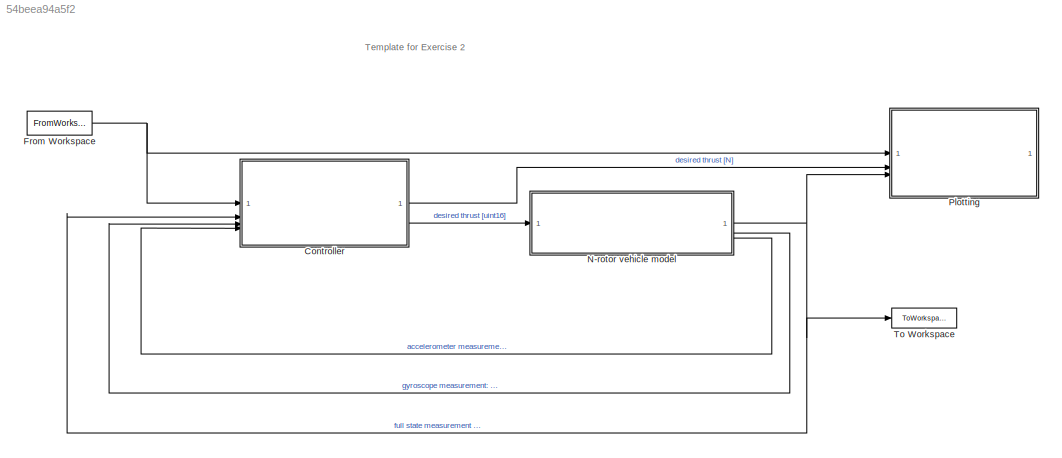
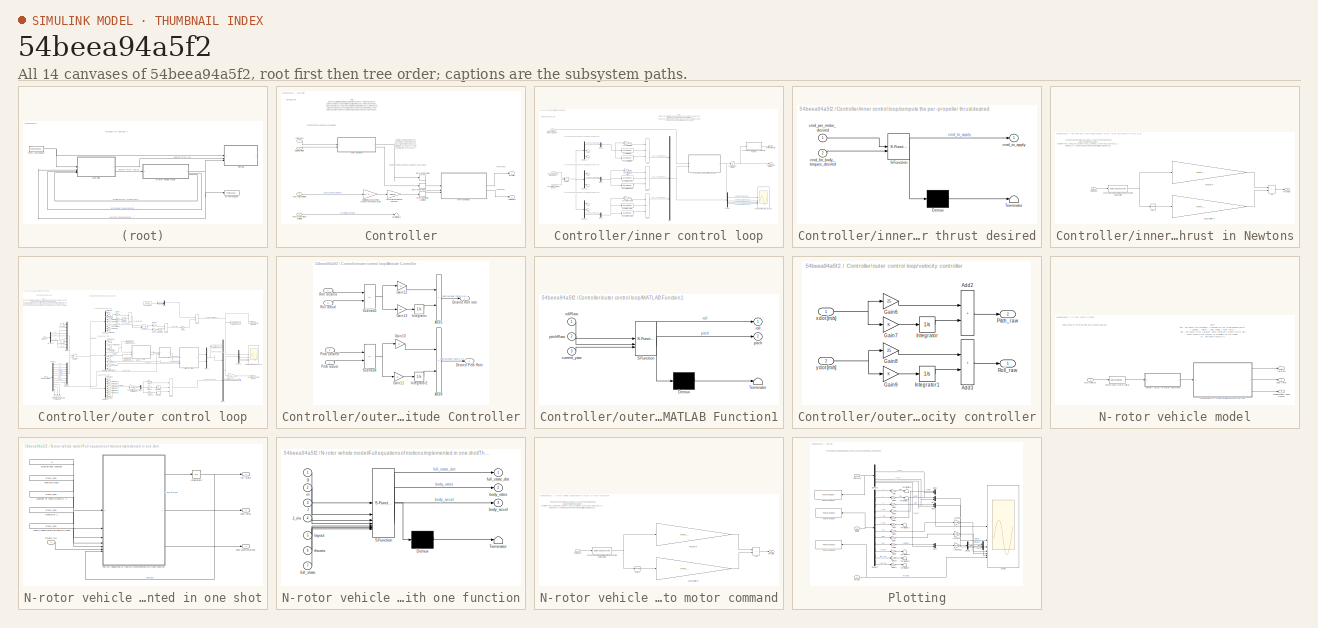
[diagram: thumbnail index - all 14 canvases of the model, root first then tree order]
MODEL slx_54beea94a5f2
KIND model
CONFIG AbsTol = auto
CONFIG EnableMultiTasking = on
CONFIG FixedStep = 1e-5
CONFIG InitFcn = nonlinear_model_setup\n% exercise02_simulation_parameters
CONFIG MaxStep = 1e-3
CONFIG MinStep = auto
CONFIG RelTol = 1e-4
CONFIG SampleTimeConstraint = Unconstrained
CONFIG SolverName = ode45
CONFIG StartTime = 0.0
CONFIG StopTime = 5
BLOCK [SubSystem] Controller
BLOCK [Gain] Controller/Convert from radians to degrees
  Gain = 180/pi
BLOCK [Gain] Controller/Rotate into axis convention used on-board the Crazyflie
  Gain = [1,-1, -1]
BLOCK [Terminator] Controller/Terminator1
BLOCK [ZeroOrderHold] Controller/Zero-Order Hold1
  SampleTime = sample_time_controller_inner
BLOCK [ZeroOrderHold] Controller/Zero-Order Hold2
  SampleTime = sample_time_controller_inner
BLOCK [Inport] Controller/body accelerations estimate
  Port = 4
BLOCK [Inport] Controller/body rates estimate
  Port = 3
BLOCK [Outport] Controller/cmd [uint16]
  Port = 2
  VectorParamsAs1DForOutWhenUnconnected = off
BLOCK [Inport] Controller/full state estimate
  Port = 2
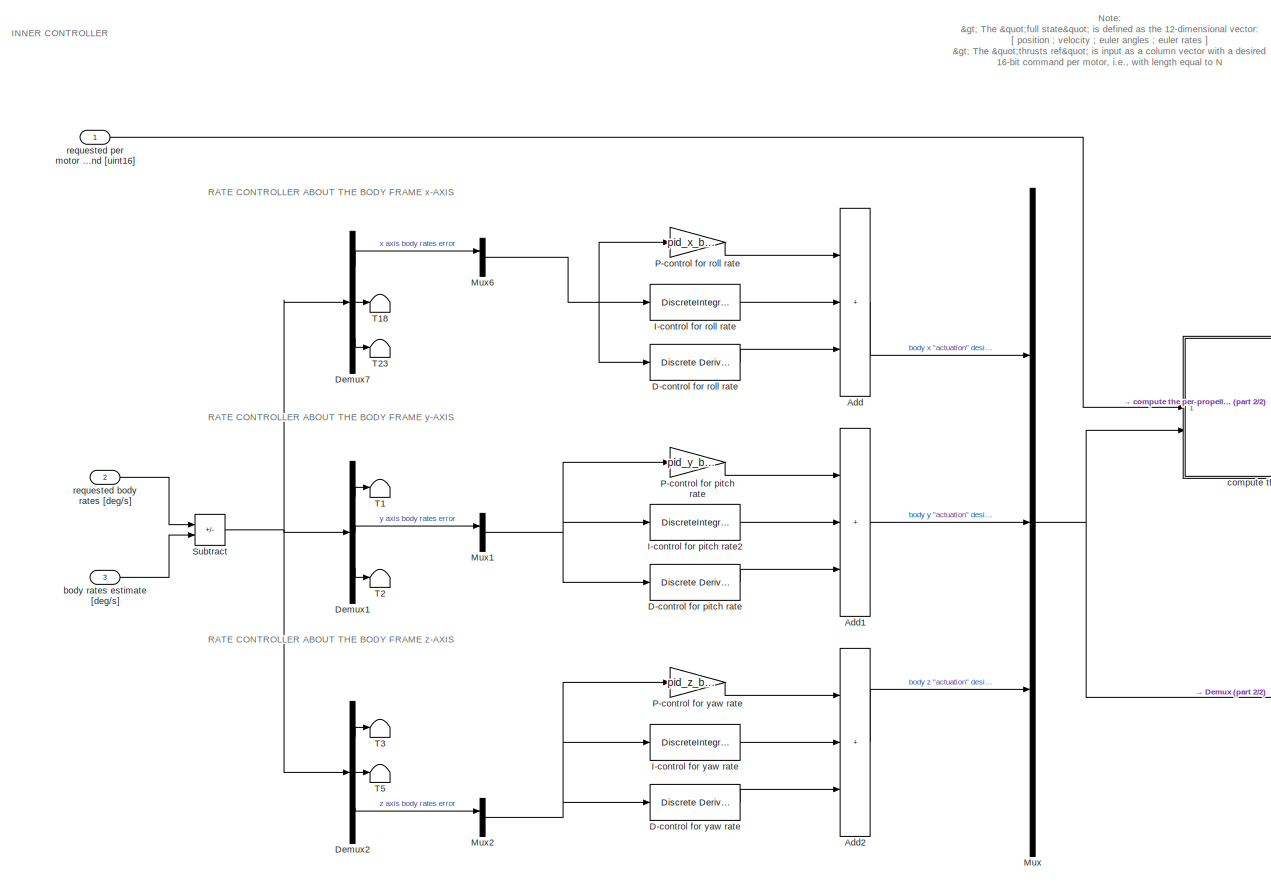
[diagram: Controller/inner control loop - part 1/2, center side, full height]
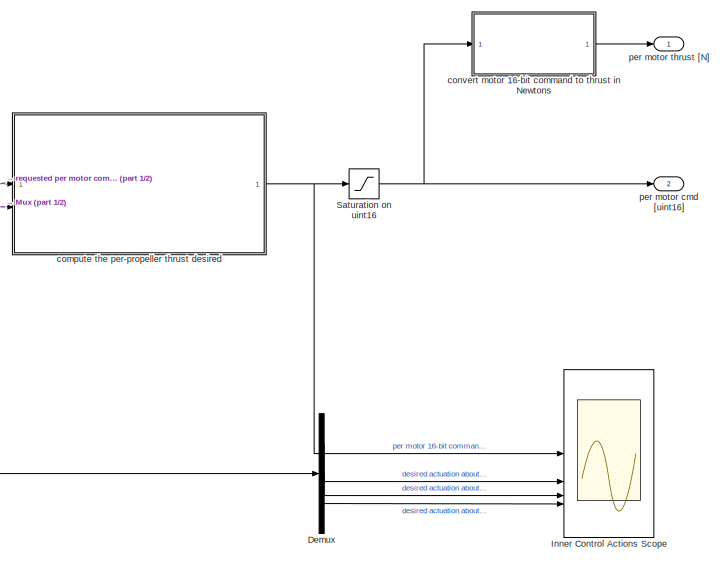
[diagram: Controller/inner control loop - part 2/2, middle right region]
BLOCK [SubSystem] Controller/inner control loop
BLOCK [ZeroOrderHold] Controller/inner control loop sampling
  SampleTime = sample_time_controller_inner
BLOCK [Sum] Controller/inner control loop/Add
  IconShape = rectangular
  Inputs = +++
BLOCK [Sum] Controller/inner control loop/Add1
  IconShape = rectangular
  Inputs = +++
BLOCK [Sum] Controller/inner control loop/Add2
  IconShape = rectangular
  Inputs = +++
BLOCK [Reference] Controller/inner control loop/D-control for pitch rate  REF=simulink/Discrete/Discrete Derivative
  SourceBlock = simulink/Discrete/Discrete Derivative
  SourceType = Discrete Derivative
BLOCK [Reference] Controller/inner control loop/D-control for roll rate  REF=simulink/Discrete/Discrete Derivative
  SourceBlock = simulink/Discrete/Discrete Derivative
  SourceType = Discrete Derivative
BLOCK [Reference] Controller/inner control loop/D-control for yaw rate  REF=simulink/Discrete/Discrete Derivative
  SourceBlock = simulink/Discrete/Discrete Derivative
  SourceType = Discrete Derivative
BLOCK [Demux] Controller/inner control loop/Demux
  Outputs = 3
BLOCK [Demux] Controller/inner control loop/Demux1
  Outputs = 3
BLOCK [Demux] Controller/inner control loop/Demux2
  Outputs = 3
BLOCK [Demux] Controller/inner control loop/Demux7
  Outputs = 3
BLOCK [DiscreteIntegrator] Controller/inner control loop/I-control for pitch rate2
  ICPrevOutput = DiscIntNeverNeededParam
  ICPrevScaledInput = DiscIntNeverNeededParam
  InitialConditionSetting = Auto
  LimitOutput = on
  LowerSaturationLimit = -pid_y_body_rate_integrator_limit
  SampleTime = -1
  UpperSaturationLimit = pid_y_body_rate_integrator_limit
  gainval = pid_y_body_rate_ki
BLOCK [DiscreteIntegrator] Controller/inner control loop/I-control for roll rate
  ICPrevOutput = DiscIntNeverNeededParam
  ICPrevScaledInput = DiscIntNeverNeededParam
  InitialConditionSetting = Auto
  LimitOutput = on
  LowerSaturationLimit = -pid_x_body_rate_integrator_limit
  SampleTime = -1
  UpperSaturationLimit = pid_x_body_rate_integrator_limit
  gainval = pid_x_body_rate_ki
BLOCK [DiscreteIntegrator] Controller/inner control loop/I-control for yaw rate
  ICPrevOutput = DiscIntNeverNeededParam
  ICPrevScaledInput = DiscIntNeverNeededParam
  InitialConditionSetting = Auto
  LimitOutput = on
  LowerSaturationLimit = -pid_x_body_rate_integrator_limit
  SampleTime = -1
  UpperSaturationLimit = pid_x_body_rate_integrator_limit
  gainval = pid_z_body_rate_ki
BLOCK [Scope] Controller/inner control loop/Inner Control Actions Scope
  Floating = off
  NumInputPorts = 4
  ScopeSpecificationString = Simulink.scopes.TimeScopeBlockCfg('CurrentConfiguration', extmgr.ConfigurationSet(extmgr.Configuration('Core','General UI',true),extmgr.Configuration('Core','Source UI',true),extmgr.Configuration('Sources','WiredSimulink',true,'DataLoggingVariableName','ScopeData1'),extmgr.Configuration('Visuals','Time Domain',true,'SerializedDisplays',{struct('MinYLimReal','36280.75','MaxYLimReal','47683.25','YLa...<+3851ch>
BLOCK [Mux] Controller/inner control loop/Mux
  DisplayOption = bar
  Inputs = 3
BLOCK [Mux] Controller/inner control loop/Mux1
  DisplayOption = bar
  Inputs = 1
BLOCK [Mux] Controller/inner control loop/Mux2
  DisplayOption = bar
  Inputs = 1
BLOCK [Mux] Controller/inner control loop/Mux6
  DisplayOption = bar
  Inputs = 1
BLOCK [Gain] Controller/inner control loop/P-control for pitch rate
  Gain = pid_y_body_rate_kp
BLOCK [Gain] Controller/inner control loop/P-control for roll rate
  Gain = pid_x_body_rate_kp
BLOCK [Gain] Controller/inner control loop/P-control for yaw rate
  Gain = pid_z_body_rate_kp
BLOCK [Saturate] Controller/inner control loop/Saturation on uint16
  LowerLimit = cmd_min
  UpperLimit = cmd_max
  ZeroCross = off
BLOCK [Sum] Controller/inner control loop/Subtract
  IconShape = rectangular
  Inputs = +-
BLOCK [Terminator] Controller/inner control loop/T1
  NameLocation = top
BLOCK [Terminator] Controller/inner control loop/T18
  NameLocation = top
BLOCK [Terminator] Controller/inner control loop/T2
  NameLocation = top
BLOCK [Terminator] Controller/inner control loop/T23
  NameLocation = top
BLOCK [Terminator] Controller/inner control loop/T3
  NameLocation = top
BLOCK [Terminator] Controller/inner control loop/T5
  NameLocation = top
BLOCK [Inport] Controller/inner control loop/body rates estimate [deg//s]
  Port = 3
BLOCK [SubSystem] Controller/inner control loop/compute the per-propeller thrust desired
  ErrorFcn = Stateflow.Translate.translate
  PermitHierarchicalResolution = ExplicitOnly
  SFBlockType = MATLAB Function
  TreatAsAtomicUnit = on
BLOCK [Demux] Controller/inner control loop/compute the per-propeller thrust desired/ Demux 
  Outputs = 1
BLOCK [S-Function] Controller/inner control loop/compute the per-propeller thrust desired/ SFunction 
  EnableBusSupport = on
  FunctionName = sf_sfun
  PortCounts = [2 2]
  SFcnIsStateOwnerBlock = off
  SFunctionDeploymentMode = off
  Tag = Stateflow S-Function 4
BLOCK [Terminator] Controller/inner control loop/compute the per-propeller thrust desired/ Terminator 
BLOCK [Inport] Controller/inner control loop/compute the per-propeller thrust desired/cmd_for_body_torques_desired
  Port = 2
BLOCK [Inport] Controller/inner control loop/compute the per-propeller thrust desired/cmd_per_motor_desired
BLOCK [Outport] Controller/inner control loop/compute the per-propeller thrust desired/cmd_to_apply
  VectorParamsAs1DForOutWhenUnconnected = off
BLOCK [SubSystem] Controller/inner control loop/convert motor 16-bit command to thrust in Newtons
BLOCK [Sum] Controller/inner control loop/convert motor 16-bit command to thrust in Newtons/Add
  IconShape = rectangular
BLOCK [Inport] Controller/inner control loop/convert motor 16-bit command to thrust in Newtons/cmd [uint16]
BLOCK [Math] Controller/inner control loop/convert motor 16-bit command to thrust in Newtons/cmd^2
  Operator = square
  SignedPower = on
BLOCK [DataTypeConversion] Controller/inner control loop/convert motor 16-bit command to thrust in Newtons/convert back to double to avoid unexpected data casting
  OutDataTypeStr = double
  RndMeth = Floor
  SaturateOnIntegerOverflow = off
BLOCK [Gain] Controller/inner control loop/convert motor 16-bit command to thrust in Newtons/linear term
  Gain = nrotor_vehicle_thrust_max .* cmd_2_newtons_conversion_linear_coefficient
BLOCK [Gain] Controller/inner control loop/convert motor 16-bit command to thrust in Newtons/quadratic term
  Gain = nrotor_vehicle_thrust_max .* cmd_2_newtons_conversion_quadratic_coefficient
BLOCK [Outport] Controller/inner control loop/convert motor 16-bit command to thrust in Newtons/thrusts [N]
  VectorParamsAs1DForOutWhenUnconnected = off
BLOCK [Outport] Controller/inner control loop/per motor cmd [uint16]
  Port = 2
  VectorParamsAs1DForOutWhenUnconnected = off
BLOCK [Outport] Controller/inner control loop/per motor thrust [N]
  VectorParamsAs1DForOutWhenUnconnected = off
BLOCK [Inport] Controller/inner control loop/requested body rates [deg//s]
  Port = 2
BLOCK [Inport] Controller/inner control loop/requested per motor comand [uint16]
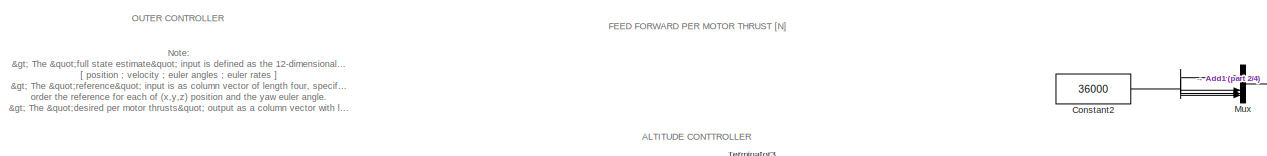
[diagram: Controller/outer control loop - part 1/4, top left region]
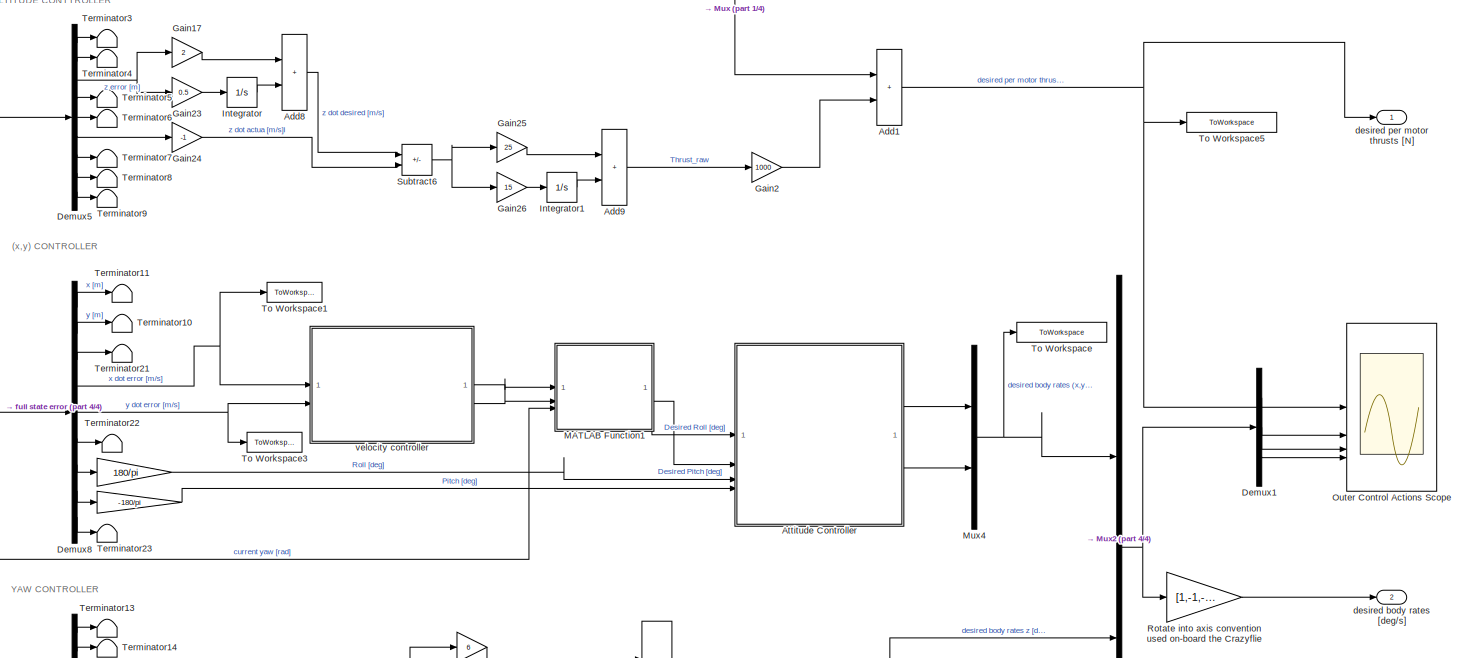
[diagram: Controller/outer control loop - part 2/4, central region]
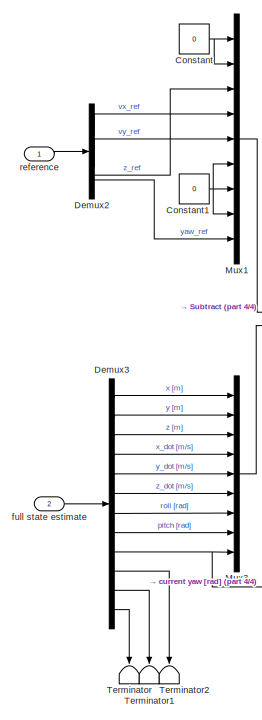
[diagram: Controller/outer control loop - part 3/4, middle left region]
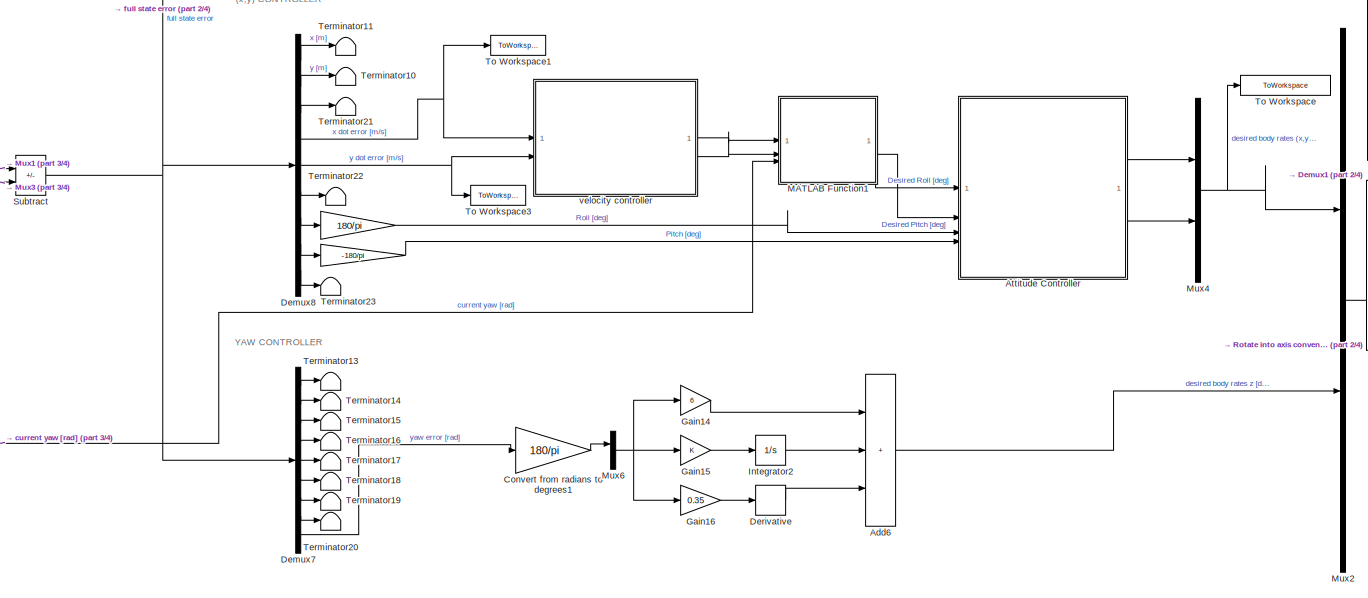
[diagram: Controller/outer control loop - part 4/4, bottom center region]
BLOCK [SubSystem] Controller/outer control loop
BLOCK [Gain] Controller/outer control loop/ 
  Gain = -180/pi
BLOCK [Sum] Controller/outer control loop/Add1
  IconShape = rectangular
BLOCK [Sum] Controller/outer control loop/Add6
  IconShape = rectangular
  Inputs = +++
BLOCK [Sum] Controller/outer control loop/Add8
  IconShape = rectangular
BLOCK [Sum] Controller/outer control loop/Add9
  IconShape = rectangular
BLOCK [SubSystem] Controller/outer control loop/Attitude Controller
BLOCK [Sum] Controller/outer control loop/Attitude Controller/Add4
  IconShape = rectangular
BLOCK [Sum] Controller/outer control loop/Attitude Controller/Add5
  IconShape = rectangular
BLOCK [Outport] Controller/outer control loop/Attitude Controller/Desired Pitch Rate
  Port = 2
  VectorParamsAs1DForOutWhenUnconnected = off
BLOCK [Outport] Controller/outer control loop/Attitude Controller/Desired Roll rate
  VectorParamsAs1DForOutWhenUnconnected = off
BLOCK [Gain] Controller/outer control loop/Attitude Controller/Gain10
  Gain = 6
BLOCK [Gain] Controller/outer control loop/Attitude Controller/Gain11
  Gain = 3
BLOCK [Gain] Controller/outer control loop/Attitude Controller/Gain12
  Gain = -6
BLOCK [Gain] Controller/outer control loop/Attitude Controller/Gain13
  Gain = -3
BLOCK [Integrator] Controller/outer control loop/Attitude Controller/Integrator
  LimitOutput = on
  LowerSaturationLimit = -20
  UpperSaturationLimit = 20
BLOCK [Integrator] Controller/outer control loop/Attitude Controller/Integrator1
  LimitOutput = on
  LowerSaturationLimit = -20
  UpperSaturationLimit = 20
BLOCK [Inport] Controller/outer control loop/Attitude Controller/Pitch Desired
  Port = 2
BLOCK [Inport] Controller/outer control loop/Attitude Controller/Pitch actual
  Port = 4
BLOCK [Inport] Controller/outer control loop/Attitude Controller/Roll actual
  Port = 3
BLOCK [Inport] Controller/outer control loop/Attitude Controller/Roll desired
BLOCK [Sum] Controller/outer control loop/Attitude Controller/Subtract4
  IconShape = rectangular
  Inputs = +-
BLOCK [Sum] Controller/outer control loop/Attitude Controller/Subtract5
  IconShape = rectangular
  Inputs = +-
BLOCK [Constant] Controller/outer control loop/Constant
  Value = 0
BLOCK [Constant] Controller/outer control loop/Constant1
  Value = 0
BLOCK [Constant] Controller/outer control loop/Constant2
  Value = 36000
BLOCK [Gain] Controller/outer control loop/Convert from radians to degrees1
  Gain = 180/pi
BLOCK [Demux] Controller/outer control loop/Demux1
  Outputs = 3
BLOCK [Demux] Controller/outer control loop/Demux2
BLOCK [Demux] Controller/outer control loop/Demux3
  Outputs = 12
BLOCK [Demux] Controller/outer control loop/Demux5
  Outputs = 9
BLOCK [Demux] Controller/outer control loop/Demux7
  Outputs = 9
BLOCK [Demux] Controller/outer control loop/Demux8
  Outputs = 9
BLOCK [Derivative] Controller/outer control loop/Derivative
BLOCK [Gain] Controller/outer control loop/Gain14
  Gain = 6
BLOCK [Gain] Controller/outer control loop/Gain15
BLOCK [Gain] Controller/outer control loop/Gain16
  Gain = 0.35
BLOCK [Gain] Controller/outer control loop/Gain17
  Gain = 2
BLOCK [Gain] Controller/outer control loop/Gain2
  Gain = 1000
BLOCK [Gain] Controller/outer control loop/Gain23
  Gain = 0.5
BLOCK [Gain] Controller/outer control loop/Gain24
  Gain = -1
BLOCK [Gain] Controller/outer control loop/Gain25
  Gain = 25
BLOCK [Gain] Controller/outer control loop/Gain26
  Gain = 15
BLOCK [Integrator] Controller/outer control loop/Integrator
BLOCK [Integrator] Controller/outer control loop/Integrator1
BLOCK [Integrator] Controller/outer control loop/Integrator2
  LimitOutput = on
  LowerSaturationLimit = -360
  UpperSaturationLimit = 360
BLOCK [SubSystem] Controller/outer control loop/MATLAB Function1
  ErrorFcn = Stateflow.Translate.translate
  PermitHierarchicalResolution = ExplicitOnly
  SFBlockType = MATLAB Function
  TreatAsAtomicUnit = on
BLOCK [Demux] Controller/outer control loop/MATLAB Function1/ Demux 
  Outputs = 1
BLOCK [S-Function] Controller/outer control loop/MATLAB Function1/ SFunction 
  EnableBusSupport = on
  FunctionName = sf_sfun
  PortCounts = [3 3]
  SFcnIsStateOwnerBlock = off
  SFunctionDeploymentMode = off
  Tag = Stateflow S-Function 1
BLOCK [Terminator] Controller/outer control loop/MATLAB Function1/ Terminator 
BLOCK [Inport] Controller/outer control loop/MATLAB Function1/current_yaw
  Port = 3
BLOCK [Outport] Controller/outer control loop/MATLAB Function1/pitch
  Port = 2
  VectorParamsAs1DForOutWhenUnconnected = off
BLOCK [Inport] Controller/outer control loop/MATLAB Function1/pitchRaw
  Port = 2
BLOCK [Outport] Controller/outer control loop/MATLAB Function1/roll
  VectorParamsAs1DForOutWhenUnconnected = off
BLOCK [Inport] Controller/outer control loop/MATLAB Function1/rollRaw
BLOCK [Mux] Controller/outer control loop/Mux
  DisplayOption = bar
BLOCK [Mux] Controller/outer control loop/Mux1
  DisplayOption = bar
  Inputs = 9
BLOCK [Mux] Controller/outer control loop/Mux2
  DisplayOption = bar
  Inputs = 2
BLOCK [Mux] Controller/outer control loop/Mux3
  DisplayOption = bar
  Inputs = 9
BLOCK [Mux] Controller/outer control loop/Mux4
  DisplayOption = bar
  Inputs = 2
BLOCK [Mux] Controller/outer control loop/Mux6
  DisplayOption = bar
  Inputs = 1
BLOCK [Scope] Controller/outer control loop/Outer Control Actions Scope
  Floating = off
  NumInputPorts = 4
  ScopeSpecificationString = Simulink.scopes.TimeScopeBlockCfg('CurrentConfiguration', extmgr.ConfigurationSet(extmgr.Configuration('Core','General UI',true),extmgr.Configuration('Core','Source UI',true),extmgr.Configuration('Sources','WiredSimulink',true,'DataLoggingVariableName','ScopeData1'),extmgr.Configuration('Visuals','Time Domain',true,'SerializedDisplays',{struct('MinYLimReal','0.06847','MaxYLimReal','0.08971','YLabe...<+3566ch>
BLOCK [Gain] Controller/outer control loop/Rotate into axis convention used on-board the Crazyflie
  Gain = [1,-1,-1]
BLOCK [Sum] Controller/outer control loop/Subtract
  IconShape = rectangular
  Inputs = +-
BLOCK [Sum] Controller/outer control loop/Subtract6
  IconShape = rectangular
  Inputs = +-
BLOCK [Terminator] Controller/outer control loop/Terminator
  NameLocation = left
BLOCK [Terminator] Controller/outer control loop/Terminator1
  NameLocation = left
BLOCK [Terminator] Controller/outer control loop/Terminator10
BLOCK [Terminator] Controller/outer control loop/Terminator11
BLOCK [Terminator] Controller/outer control loop/Terminator13
BLOCK [Terminator] Controller/outer control loop/Terminator14
BLOCK [Terminator] Controller/outer control loop/Terminator15
BLOCK [Terminator] Controller/outer control loop/Terminator16
BLOCK [Terminator] Controller/outer control loop/Terminator17
BLOCK [Terminator] Controller/outer control loop/Terminator18
BLOCK [Terminator] Controller/outer control loop/Terminator19
BLOCK [Terminator] Controller/outer control loop/Terminator2
  NameLocation = left
BLOCK [Terminator] Controller/outer control loop/Terminator20
BLOCK [Terminator] Controller/outer control loop/Terminator21
BLOCK [Terminator] Controller/outer control loop/Terminator22
BLOCK [Terminator] Controller/outer control loop/Terminator23
BLOCK [Terminator] Controller/outer control loop/Terminator3
BLOCK [Terminator] Controller/outer control loop/Terminator4
BLOCK [Terminator] Controller/outer control loop/Terminator5
BLOCK [Terminator] Controller/outer control loop/Terminator6
BLOCK [Terminator] Controller/outer control loop/Terminator7
BLOCK [Terminator] Controller/outer control loop/Terminator8
BLOCK [Terminator] Controller/outer control loop/Terminator9
BLOCK [ToWorkspace] Controller/outer control loop/To Workspace
  FixptAsFi = on
  MaxDataPoints = inf
  SampleTime = -1
  VariableName = body_rates_desired
BLOCK [ToWorkspace] Controller/outer control loop/To Workspace1
  FixptAsFi = on
  MaxDataPoints = inf
  SampleTime = -1
  VariableName = vx_error
BLOCK [ToWorkspace] Controller/outer control loop/To Workspace3
  FixptAsFi = on
  MaxDataPoints = inf
  SampleTime = -1
  VariableName = vy_error
BLOCK [ToWorkspace] Controller/outer control loop/To Workspace5
  FixptAsFi = on
  MaxDataPoints = inf
  SampleTime = -1
  VariableName = thrust_desired
BLOCK [Outport] Controller/outer control loop/desired body rates [deg//s]
  Port = 2
  VectorParamsAs1DForOutWhenUnconnected = off
BLOCK [Outport] Controller/outer control loop/desired per motor thrusts [N]
  VectorParamsAs1DForOutWhenUnconnected = off
BLOCK [Inport] Controller/outer control loop/full state estimate
  Port = 2
BLOCK [Inport] Controller/outer control loop/reference
BLOCK [SubSystem] Controller/outer control loop/velocity controller
BLOCK [Sum] Controller/outer control loop/velocity controller/Add2
  IconShape = rectangular
BLOCK [Sum] Controller/outer control loop/velocity controller/Add3
  IconShape = rectangular
BLOCK [Gain] Controller/outer control loop/velocity controller/Gain6
  Gain = 25
BLOCK [Gain] Controller/outer control loop/velocity controller/Gain7
BLOCK [Gain] Controller/outer control loop/velocity controller/Gain8
  Gain = 25
BLOCK [Gain] Controller/outer control loop/velocity controller/Gain9
BLOCK [Integrator] Controller/outer control loop/velocity controller/Integrator
BLOCK [Integrator] Controller/outer control loop/velocity controller/Integrator1
BLOCK [Outport] Controller/outer control loop/velocity controller/Pitch_raw
  Port = 2
  VectorParamsAs1DForOutWhenUnconnected = off
BLOCK [Outport] Controller/outer control loop/velocity controller/Roll_raw
  VectorParamsAs1DForOutWhenUnconnected = off
BLOCK [Inport] Controller/outer control loop/velocity controller/x dot [m//s]
BLOCK [Inport] Controller/outer control loop/velocity controller/y dot [m//s]
  Port = 2
BLOCK [Inport] Controller/reference
BLOCK [Outport] Controller/thrust [N]
  VectorParamsAs1DForOutWhenUnconnected = off
BLOCK [FromWorkspace] From Workspace
  VariableName = reference
BLOCK [SubSystem] N-rotor vehicle model
BLOCK [SubSystem] N-rotor vehicle model/Full equations of motions implemented in one shot
BLOCK [Integrator] N-rotor vehicle model/Full equations of motions implemented in one shot/Integrator5
  InitialCondition = nrotor_initial_condition
BLOCK [Constant] N-rotor vehicle model/Full equations of motions implemented in one shot/Inverse of J
  Value = nrotor_vehicle_inertia_true_inverse
BLOCK [Constant] N-rotor vehicle model/Full equations of motions implemented in one shot/Matrix describing the vehicle layout
  Value = nrotor_vehicle_layout_true
BLOCK [Constant] N-rotor vehicle model/Full equations of motions implemented in one shot/Moment of inertia matrix, J
  Value = nrotor_vehicle_inertia_true
BLOCK [SubSystem] N-rotor vehicle model/Full equations of motions implemented in one shot/The full equations of motion implemented with one function
  ErrorFcn = Stateflow.Translate.translate
  PermitHierarchicalResolution = ExplicitOnly
  SFBlockType = MATLAB Function
  TreatAsAtomicUnit = on
BLOCK [Demux] N-rotor vehicle model/Full equations of motions implemented in one shot/The full equations of motion implemented with one function/ Demux 
  Outputs = 1
BLOCK [S-Function] N-rotor vehicle model/Full equations of motions implemented in one shot/The full equations of motion implemented with one function/ SFunction 
  EnableBusSupport = on
  FunctionName = sf_sfun
  PortCounts = [7 4]
  SFcnIsStateOwnerBlock = off
  SFunctionDeploymentMode = off
  Tag = Stateflow S-Function 5
BLOCK [Terminator] N-rotor vehicle model/Full equations of motions implemented in one shot/The full equations of motion implemented with one function/ Terminator 
BLOCK [Inport] N-rotor vehicle model/Full equations of motions implemented in one shot/The full equations of motion implemented with one function/J
  Port = 3
BLOCK [Inport] N-rotor vehicle model/Full equations of motions implemented in one shot/The full equations of motion implemented with one function/J_inv
  Port = 4
BLOCK [Outport] N-rotor vehicle model/Full equations of motions implemented in one shot/The full equations of motion implemented with one function/body_accel
  Port = 3
  VectorParamsAs1DForOutWhenUnconnected = off
BLOCK [Outport] N-rotor vehicle model/Full equations of motions implemented in one shot/The full equations of motion implemented with one function/body_rates
  Port = 2
  VectorParamsAs1DForOutWhenUnconnected = off
BLOCK [Inport] N-rotor vehicle model/Full equations of motions implemented in one shot/The full equations of motion implemented with one function/full_state
  Port = 7
BLOCK [Outport] N-rotor vehicle model/Full equations of motions implemented in one shot/The full equations of motion implemented with one function/full_state_dot
  VectorParamsAs1DForOutWhenUnconnected = off
BLOCK [Inport] N-rotor vehicle model/Full equations of motions implemented in one shot/The full equations of motion implemented with one function/g
BLOCK [Inport] N-rotor vehicle model/Full equations of motions implemented in one shot/The full equations of motion implemented with one function/layout
  Port = 5
BLOCK [Inport] N-rotor vehicle model/Full equations of motions implemented in one shot/The full equations of motion implemented with one function/m
  Port = 2
BLOCK [Inport] N-rotor vehicle model/Full equations of motions implemented in one shot/The full equations of motion implemented with one function/thrusts
  Port = 6
BLOCK [Outport] N-rotor vehicle model/Full equations of motions implemented in one shot/body accellerations
  Port = 3
  VectorParamsAs1DForOutWhenUnconnected = off
BLOCK [Outport] N-rotor vehicle model/Full equations of motions implemented in one shot/body rates
  Port = 2
  VectorParamsAs1DForOutWhenUnconnected = off
BLOCK [Outport] N-rotor vehicle model/Full equations of motions implemented in one shot/full state
  VectorParamsAs1DForOutWhenUnconnected = off
BLOCK [Constant] N-rotor vehicle model/Full equations of motions implemented in one shot/graviational constant
  Value = g
BLOCK [Inport] N-rotor vehicle model/Full equations of motions implemented in one shot/thrusts [N]
BLOCK [Constant] N-rotor vehicle model/Full equations of motions implemented in one shot/vehicle's mass
  Value = nrotor_vehicle_mass_true
BLOCK [Outport] N-rotor vehicle model/accelerations (body frame)
  Port = 3
  VectorParamsAs1DForOutWhenUnconnected = off
BLOCK [Outport] N-rotor vehicle model/body rates
  Port = 2
  VectorParamsAs1DForOutWhenUnconnected = off
BLOCK [Inport] N-rotor vehicle model/cmd [uint16]
BLOCK [SubSystem] N-rotor vehicle model/convert thrust to motor command
BLOCK [Sum] N-rotor vehicle model/convert thrust to motor command/Add
  IconShape = rectangular
BLOCK [Inport] N-rotor vehicle model/convert thrust to motor command/cmd [uint16]
BLOCK [Math] N-rotor vehicle model/convert thrust to motor command/cmd^2
  Operator = square
  SignedPower = on
BLOCK [DataTypeConversion] N-rotor vehicle model/convert thrust to motor command/convert back to double to avoid unexpected data casting
  OutDataTypeStr = double
  RndMeth = Floor
  SaturateOnIntegerOverflow = off
BLOCK [Gain] N-rotor vehicle model/convert thrust to motor command/linear term
  Gain = nrotor_vehicle_thrust_max .* cmd_2_newtons_conversion_linear_coefficient
BLOCK [Gain] N-rotor vehicle model/convert thrust to motor command/quadratic term
  Gain = nrotor_vehicle_thrust_max .* cmd_2_newtons_conversion_quadratic_coefficient
BLOCK [Outport] N-rotor vehicle model/convert thrust to motor command/thrust [N]
  VectorParamsAs1DForOutWhenUnconnected = off
BLOCK [DataTypeConversion] N-rotor vehicle model/ensure data type is unit16
  OutDataTypeStr = uint16
  RndMeth = Floor
  SaturateOnIntegerOverflow = off
BLOCK [Outport] N-rotor vehicle model/full state
  VectorParamsAs1DForOutWhenUnconnected = off
BLOCK [SubSystem] Plotting
  Commented = on
BLOCK [Demux] Plotting/Demux
  Outputs = 2
BLOCK [Demux] Plotting/Demux1
  Outputs = 12
BLOCK [Demux] Plotting/Demux2
BLOCK [Gain] Plotting/Gain
BLOCK [Gain] Plotting/Gain1
BLOCK [Gain] Plotting/Gain10
BLOCK [Gain] Plotting/Gain11
BLOCK [Gain] Plotting/Gain2
BLOCK [Gain] Plotting/Gain3
BLOCK [Gain] Plotting/Gain4
BLOCK [Gain] Plotting/Gain5
BLOCK [Gain] Plotting/Gain6
BLOCK [Gain] Plotting/Gain7
BLOCK [Gain] Plotting/Gain8
BLOCK [Gain] Plotting/Gain9
BLOCK [Mux] Plotting/Mux1
  DisplayOption = bar
  Inputs = 2
BLOCK [Mux] Plotting/Mux2
  DisplayOption = bar
  Inputs = 2
BLOCK [Mux] Plotting/Mux3
  DisplayOption = bar
  Inputs = 2
BLOCK [Mux] Plotting/Mux4
  DisplayOption = bar
  Inputs = 2
BLOCK [Mux] Plotting/Mux5
  DisplayOption = bar
  Inputs = 2
BLOCK [Scope] Plotting/Scope
  Floating = off
  NumInputPorts = 7
  ScopeSpecificationString = Simulink.scopes.TimeScopeBlockCfg('CurrentConfiguration', extmgr.ConfigurationSet(extmgr.Configuration('Core','General UI',true,'FigureColor',[0.941176470588235 0.941176470588235 0.941176470588235]),extmgr.Configuration('Core','Source UI',true),extmgr.Configuration('Sources','WiredSimulink',true,'DataLoggingSaveFormat','Array','DataLoggingDecimation','1','DataLoggingDecimateData',true),extmgr.Conf...<+8095ch>
BLOCK [Terminator] Plotting/Terminator1
BLOCK [Terminator] Plotting/Terminator3
BLOCK [Terminator] Plotting/Terminator4
BLOCK [Terminator] Plotting/Terminator5
BLOCK [Terminator] Plotting/Terminator6
BLOCK [Terminator] Plotting/Terminator7
BLOCK [ToWorkspace] Plotting/To Workspace
  FixptAsFi = on
  MaxDataPoints = inf
  SampleTime = -1
  SaveFormat = Timeseries
  VariableName = simout_full_state
BLOCK [ToWorkspace] Plotting/To Workspace1
  FixptAsFi = on
  MaxDataPoints = inf
  SampleTime = -1
  SaveFormat = Timeseries
  VariableName = simout_reference
BLOCK [ToWorkspace] Plotting/To Workspace2
  FixptAsFi = on
  MaxDataPoints = inf
  SampleTime = -1
  SaveFormat = Timeseries
  VariableName = simout_thrusts
BLOCK [Inport] Plotting/full state
  Port = 3
BLOCK [Gain] Plotting/rad2deg
  Gain = 180/pi
BLOCK [Gain] Plotting/rad2deg1
  Gain = 180/pi
BLOCK [Gain] Plotting/rad2deg2
  Gain = 180/pi
BLOCK [Inport] Plotting/reference
BLOCK [Inport] Plotting/thrusts
  Port = 2
BLOCK [ToWorkspace] To Workspace
  FixptAsFi = on
  MaxDataPoints = inf
  SampleTime = -1
  VariableName = next_state
ANNOTATION (root): Template for Exercise 2
ANNOTATION Controller: CONTROLLER
ANNOTATION Controller: Note: > The "full state estimate" is defined as the 12-dimensional vector: [ position ; velocity ; euler angles ; euler rates ] > The "body rates estimate" is defined as a 3-dimensional vector: angular rate about the body frame [ x ; y ; z ] axes > The "body accelerations estimate" is defined as a 3-dimensional vector: acceleration along the body frame [ x ; y ; z ] axes > The "reference" input is...<+436ch>
ANNOTATION Controller: INNER CONTROLLER (to be run on the N-rotor vehicle)
ANNOTATION Controller: OUTER CONTROLLER (to be run on a laptop)
ANNOTATION Controller: Radio transmission of desired per motor thrusts and desired body rates from the "off-board" laptop to the "on-baord" N-rotor vehicle's micro-processor
ANNOTATION Controller: TO MOTORS
ANNOTATION Controller: TO PLOTTING
ANNOTATION Controller/inner control loop: Note: > The "full state" is defined as the 12-dimensional vector: [ position ; velocity ; euler angles ; euler rates ] > The "thrusts ref" is input as a column vector with a desired 16-bit command per motor, i.e., with length equal to N
ANNOTATION Controller/inner control loop: INNER CONTROLLER
ANNOTATION Controller/inner control loop: RATE CONTROLLER ABOUT THE BODY FRAME x-AXIS
ANNOTATION Controller/inner control loop: RATE CONTROLLER ABOUT THE BODY FRAME y-AXIS
ANNOTATION Controller/inner control loop: RATE CONTROLLER ABOUT THE BODY FRAME z-AXIS
ANNOTATION Controller/inner control loop/convert motor 16-bit command to thrust in Newtons: CONVERT MOTOR COMMAND AS uint16 VALUE TO THRUST IN NEWTONS > Apply the following equation: thust [N] = nrotor_vehicle_thrust_max * ( cmd_2_newtons_conversion_quadratic_coefficient * cmd^2 + cmd_2_newtons_conversion_linear_coefficient * cmd ) > This sub-system acts element-wise on the input, i.e., the output is a vector of the same length as the input
ANNOTATION Controller/outer control loop: (x,y) CONTROLLER
ANNOTATION Controller/outer control loop: Note: > The "full state estimate" input is defined as the 12-dimensional vector: [ position ; velocity ; euler angles ; euler rates ] > The "reference" input is as column vector of length four, specifying in order the reference for each of (x,y,z) position and the yaw euler angle. > The "desired per motor thrusts" output as a column vector with length equal to the number of propellers, i.e., with ...<+162ch>
ANNOTATION Controller/outer control loop: OUTER CONTROLLER
ANNOTATION Controller/outer control loop: ALTITUDE CONTTROLLER
ANNOTATION Controller/outer control loop: FEED FORWARD PER MOTOR THRUST [N]
ANNOTATION Controller/outer control loop: YAW CONTROLLER
ANNOTATION N-rotor vehicle model: Note: > The "full state" is defined as the 12-dimensional vector: [ position ; velocity ; euler angles ; euler rates ] > The "thrust [N]" input should be a column vector with length equal to the number of propellers on the vehicle, i.e., with length equal to N
ANNOTATION N-rotor vehicle model: EQUATIONS OF MOTION FOR THE N-ROTOR VEHICLE
ANNOTATION N-rotor vehicle model/convert thrust to motor command: CONVERT MOTOR COMMAND AS uint16 VALUE TO THRUST IN NEWTONS > Apply the following equation: thust [N] = nrotor_vehicle_thrust_max * ( cmd_2_newtons_conversion_quadratic_coefficient * cmd^2 + cmd_2_newtons_conversion_linear_coefficient * cmd ) > This sub-system acts element-wise on the input, i.e., the output is a vector of the same length as the input
ANNOTATION Plotting: PLOTTING OF THE REFERENCE, STATE TRAJECTORY, AND PROPELLER THRUSTS
LINE Controller/Convert from radians to degrees:1 -> Controller/inner control loop sampling:1
LINE Controller/Rotate into axis convention used on-board the Crazyflie:1 -> Controller/Convert from radians to degrees:1
LINE Controller/Zero-Order Hold1:1 -> Controller/inner control loop:2
LINE Controller/Zero-Order Hold2:1 -> Controller/inner control loop:1
LINE Controller/body accelerations estimate:1 -> Controller/Terminator1:1
LINE Controller/body rates estimate:1 -> Controller/Rotate into axis convention used on-board the Crazyflie:1
LINE Controller/full state estimate:1 -> Controller/outer control loop:2
LINE Controller/inner control loop sampling:1 -> Controller/inner control loop:3
LINE Controller/inner control loop/Add1:1 -> Controller/inner control loop/Mux:2
LINE Controller/inner control loop/Add2:1 -> Controller/inner control loop/Mux:3
LINE Controller/inner control loop/Add:1 -> Controller/inner control loop/Mux:1
LINE Controller/inner control loop/D-control for pitch rate:1 -> Controller/inner control loop/Add1:3
LINE Controller/inner control loop/D-control for roll rate:1 -> Controller/inner control loop/Add:3
LINE Controller/inner control loop/D-control for yaw rate:1 -> Controller/inner control loop/Add2:3
LINE Controller/inner control loop/Demux1:1 -> Controller/inner control loop/T1:1
LINE Controller/inner control loop/Demux1:2 -> Controller/inner control loop/Mux1:1
LINE Controller/inner control loop/Demux1:3 -> Controller/inner control loop/T2:1
LINE Controller/inner control loop/Demux2:1 -> Controller/inner control loop/T3:1
LINE Controller/inner control loop/Demux2:2 -> Controller/inner control loop/T5:1
LINE Controller/inner control loop/Demux2:3 -> Controller/inner control loop/Mux2:1
LINE Controller/inner control loop/Demux7:1 -> Controller/inner control loop/Mux6:1
LINE Controller/inner control loop/Demux7:2 -> Controller/inner control loop/T18:1
LINE Controller/inner control loop/Demux7:3 -> Controller/inner control loop/T23:1
LINE Controller/inner control loop/Demux:1 -> Controller/inner control loop/Inner Control Actions Scope:2
LINE Controller/inner control loop/Demux:2 -> Controller/inner control loop/Inner Control Actions Scope:3
LINE Controller/inner control loop/Demux:3 -> Controller/inner control loop/Inner Control Actions Scope:4
LINE Controller/inner control loop/I-control for pitch rate2:1 -> Controller/inner control loop/Add1:2
LINE Controller/inner control loop/I-control for roll rate:1 -> Controller/inner control loop/Add:2
LINE Controller/inner control loop/I-control for yaw rate:1 -> Controller/inner control loop/Add2:2
NET Controller/inner control loop/Mux1:1 -> Controller/inner control loop/D-control for pitch rate:1, Controller/inner control loop/I-control for pitch rate2:1, Controller/inner control loop/P-control for pitch rate:1
NET Controller/inner control loop/Mux2:1 -> Controller/inner control loop/D-control for yaw rate:1, Controller/inner control loop/I-control for yaw rate:1, Controller/inner control loop/P-control for yaw rate:1
NET Controller/inner control loop/Mux6:1 -> Controller/inner control loop/D-control for roll rate:1, Controller/inner control loop/I-control for roll rate:1, Controller/inner control loop/P-control for roll rate:1
NET Controller/inner control loop/Mux:1 -> Controller/inner control loop/Demux:1, Controller/inner control loop/compute the per-propeller thrust desired:2
LINE Controller/inner control loop/P-control for pitch rate:1 -> Controller/inner control loop/Add1:1
LINE Controller/inner control loop/P-control for roll rate:1 -> Controller/inner control loop/Add:1
LINE Controller/inner control loop/P-control for yaw rate:1 -> Controller/inner control loop/Add2:1
NET Controller/inner control loop/Saturation on uint16:1 -> Controller/inner control loop/convert motor 16-bit command to thrust in Newtons:1, Controller/inner control loop/per motor cmd [uint16]:1
NET Controller/inner control loop/Subtract:1 -> Controller/inner control loop/Demux1:1, Controller/inner control loop/Demux2:1, Controller/inner control loop/Demux7:1
LINE Controller/inner control loop/body rates estimate [deg//s]:1 -> Controller/inner control loop/Subtract:2
NET Controller/inner control loop/compute the per-propeller thrust desired:1 -> Controller/inner control loop/Inner Control Actions Scope:1, Controller/inner control loop/Saturation on uint16:1
LINE Controller/inner control loop/convert motor 16-bit command to thrust in Newtons/Add:1 -> Controller/inner control loop/convert motor 16-bit command to thrust in Newtons/thrusts [N]:1
LINE Controller/inner control loop/convert motor 16-bit command to thrust in Newtons/cmd [uint16]:1 -> Controller/inner control loop/convert motor 16-bit command to thrust in Newtons/convert back to double to avoid unexpected data casting:1
LINE Controller/inner control loop/convert motor 16-bit command to thrust in Newtons/cmd^2:1 -> Controller/inner control loop/convert motor 16-bit command to thrust in Newtons/quadratic term:1
NET Controller/inner control loop/convert motor 16-bit command to thrust in Newtons/convert back to double to avoid unexpected data casting:1 -> Controller/inner control loop/convert motor 16-bit command to thrust in Newtons/cmd^2:1, Controller/inner control loop/convert motor 16-bit command to thrust in Newtons/linear term:1
LINE Controller/inner control loop/convert motor 16-bit command to thrust in Newtons/linear term:1 -> Controller/inner control loop/convert motor 16-bit command to thrust in Newtons/Add:1
LINE Controller/inner control loop/convert motor 16-bit command to thrust in Newtons/quadratic term:1 -> Controller/inner control loop/convert motor 16-bit command to thrust in Newtons/Add:2
LINE Controller/inner control loop/convert motor 16-bit command to thrust in Newtons:1 -> Controller/inner control loop/per motor thrust [N]:1
LINE Controller/inner control loop/requested body rates [deg//s]:1 -> Controller/inner control loop/Subtract:1
LINE Controller/inner control loop/requested per motor comand [uint16]:1 -> Controller/inner control loop/compute the per-propeller thrust desired:1
LINE Controller/inner control loop:1 -> Controller/thrust [N]:1
LINE Controller/inner control loop:2 -> Controller/cmd [uint16]:1
NET Controller/outer control loop/ :1 -> Controller/outer control loop/Attitude Controller:3, Controller/outer control loop/Attitude Controller:4
NET Controller/outer control loop/Add1:1 -> Controller/outer control loop/Outer Control Actions Scope:1, Controller/outer control loop/To Workspace5:1, Controller/outer control loop/desired per motor thrusts [N]:1
LINE Controller/outer control loop/Add6:1 -> Controller/outer control loop/Mux2:2
LINE Controller/outer control loop/Add8:1 -> Controller/outer control loop/Subtract6:1
LINE Controller/outer control loop/Add9:1 -> Controller/outer control loop/Gain2:1
LINE Controller/outer control loop/Attitude Controller/Add4:1 -> Controller/outer control loop/Attitude Controller/Desired Pitch Rate:1
LINE Controller/outer control loop/Attitude Controller/Add5:1 -> Controller/outer control loop/Attitude Controller/Desired Roll rate:1
LINE Controller/outer control loop/Attitude Controller/Gain10:1 -> Controller/outer control loop/Attitude Controller/Add4:1
LINE Controller/outer control loop/Attitude Controller/Gain11:1 -> Controller/outer control loop/Attitude Controller/Integrator1:1
LINE Controller/outer control loop/Attitude Controller/Gain12:1 -> Controller/outer control loop/Attitude Controller/Add5:1
LINE Controller/outer control loop/Attitude Controller/Gain13:1 -> Controller/outer control loop/Attitude Controller/Integrator:1
LINE Controller/outer control loop/Attitude Controller/Integrator1:1 -> Controller/outer control loop/Attitude Controller/Add4:2
LINE Controller/outer control loop/Attitude Controller/Integrator:1 -> Controller/outer control loop/Attitude Controller/Add5:2
LINE Controller/outer control loop/Attitude Controller/Pitch Desired:1 -> Controller/outer control loop/Attitude Controller/Subtract4:1
LINE Controller/outer control loop/Attitude Controller/Pitch actual:1 -> Controller/outer control loop/Attitude Controller/Subtract4:2
LINE Controller/outer control loop/Attitude Controller/Roll actual:1 -> Controller/outer control loop/Attitude Controller/Subtract5:2
LINE Controller/outer control loop/Attitude Controller/Roll desired:1 -> Controller/outer control loop/Attitude Controller/Subtract5:1
NET Controller/outer control loop/Attitude Controller/Subtract4:1 -> Controller/outer control loop/Attitude Controller/Gain10:1, Controller/outer control loop/Attitude Controller/Gain11:1
NET Controller/outer control loop/Attitude Controller/Subtract5:1 -> Controller/outer control loop/Attitude Controller/Gain12:1, Controller/outer control loop/Attitude Controller/Gain13:1
LINE Controller/outer control loop/Attitude Controller:1 -> Controller/outer control loop/Mux4:1
LINE Controller/outer control loop/Attitude Controller:2 -> Controller/outer control loop/Mux4:2
NET Controller/outer control loop/Constant1:1 -> Controller/outer control loop/Mux1:6, Controller/outer control loop/Mux1:7, Controller/outer control loop/Mux1:8
NET Controller/outer control loop/Constant2:1 -> Controller/outer control loop/Mux:1, Controller/outer control loop/Mux:2, Controller/outer control loop/Mux:3, Controller/outer control loop/Mux:4
NET Controller/outer control loop/Constant:1 -> Controller/outer control loop/Mux1:1, Controller/outer control loop/Mux1:2
LINE Controller/outer control loop/Convert from radians to degrees1:1 -> Controller/outer control loop/Mux6:1
LINE Controller/outer control loop/Demux1:1 -> Controller/outer control loop/Outer Control Actions Scope:2
LINE Controller/outer control loop/Demux1:2 -> Controller/outer control loop/Outer Control Actions Scope:3
LINE Controller/outer control loop/Demux1:3 -> Controller/outer control loop/Outer Control Actions Scope:4
LINE Controller/outer control loop/Demux2:1 -> Controller/outer control loop/Mux1:4
LINE Controller/outer control loop/Demux2:2 -> Controller/outer control loop/Mux1:5
LINE Controller/outer control loop/Demux2:3 -> Controller/outer control loop/Mux1:3
LINE Controller/outer control loop/Demux2:4 -> Controller/outer control loop/Mux1:9
LINE Controller/outer control loop/Demux3:1 -> Controller/outer control loop/Mux3:1
LINE Controller/outer control loop/Demux3:10 -> Controller/outer control loop/Terminator2:1
LINE Controller/outer control loop/Demux3:11 -> Controller/outer control loop/Terminator1:1
LINE Controller/outer control loop/Demux3:12 -> Controller/outer control loop/Terminator:1
LINE Controller/outer control loop/Demux3:2 -> Controller/outer control loop/Mux3:2
LINE Controller/outer control loop/Demux3:3 -> Controller/outer control loop/Mux3:3
LINE Controller/outer control loop/Demux3:4 -> Controller/outer control loop/Mux3:4
LINE Controller/outer control loop/Demux3:5 -> Controller/outer control loop/Mux3:5
LINE Controller/outer control loop/Demux3:6 -> Controller/outer control loop/Mux3:6
LINE Controller/outer control loop/Demux3:7 -> Controller/outer control loop/Mux3:7
LINE Controller/outer control loop/Demux3:8 -> Controller/outer control loop/Mux3:8
NET Controller/outer control loop/Demux3:9 -> Controller/outer control loop/MATLAB Function1:3, Controller/outer control loop/Mux3:9
LINE Controller/outer control loop/Demux5:1 -> Controller/outer control loop/Terminator3:1
LINE Controller/outer control loop/Demux5:2 -> Controller/outer control loop/Terminator4:1
NET Controller/outer control loop/Demux5:3 -> Controller/outer control loop/Gain17:1, Controller/outer control loop/Gain23:1
LINE Controller/outer control loop/Demux5:4 -> Controller/outer control loop/Terminator5:1
LINE Controller/outer control loop/Demux5:5 -> Controller/outer control loop/Terminator6:1
LINE Controller/outer control loop/Demux5:6 -> Controller/outer control loop/Gain24:1
LINE Controller/outer control loop/Demux5:7 -> Controller/outer control loop/Terminator7:1
LINE Controller/outer control loop/Demux5:8 -> Controller/outer control loop/Terminator8:1
LINE Controller/outer control loop/Demux5:9 -> Controller/outer control loop/Terminator9:1
LINE Controller/outer control loop/Demux7:1 -> Controller/outer control loop/Terminator13:1
LINE Controller/outer control loop/Demux7:2 -> Controller/outer control loop/Terminator14:1
LINE Controller/outer control loop/Demux7:3 -> Controller/outer control loop/Terminator15:1
LINE Controller/outer control loop/Demux7:4 -> Controller/outer control loop/Terminator16:1
LINE Controller/outer control loop/Demux7:5 -> Controller/outer control loop/Terminator17:1
LINE Controller/outer control loop/Demux7:6 -> Controller/outer control loop/Terminator18:1
LINE Controller/outer control loop/Demux7:7 -> Controller/outer control loop/Terminator19:1
LINE Controller/outer control loop/Demux7:8 -> Controller/outer control loop/Terminator20:1
LINE Controller/outer control loop/Demux7:9 -> Controller/outer control loop/Convert from radians to degrees1:1
LINE Controller/outer control loop/Demux8:1 -> Controller/outer control loop/Terminator11:1
LINE Controller/outer control loop/Demux8:2 -> Controller/outer control loop/Terminator10:1
LINE Controller/outer control loop/Demux8:3 -> Controller/outer control loop/Terminator21:1
NET Controller/outer control loop/Demux8:4 -> Controller/outer control loop/To Workspace1:1, Controller/outer control loop/velocity controller:1
NET Controller/outer control loop/Demux8:5 -> Controller/outer control loop/To Workspace3:1, Controller/outer control loop/velocity controller:2
LINE Controller/outer control loop/Demux8:6 -> Controller/outer control loop/Terminator22:1
LINE Controller/outer control loop/Demux8:7 -> Controller/outer control loop/ :1
LINE Controller/outer control loop/Demux8:8 -> Controller/outer control loop/ :1
LINE Controller/outer control loop/Demux8:9 -> Controller/outer control loop/Terminator23:1
LINE Controller/outer control loop/Derivative:1 -> Controller/outer control loop/Add6:3
LINE Controller/outer control loop/Gain14:1 -> Controller/outer control loop/Add6:1
LINE Controller/outer control loop/Gain15:1 -> Controller/outer control loop/Integrator2:1
LINE Controller/outer control loop/Gain16:1 -> Controller/outer control loop/Derivative:1
LINE Controller/outer control loop/Gain17:1 -> Controller/outer control loop/Add8:1
LINE Controller/outer control loop/Gain23:1 -> Controller/outer control loop/Integrator:1
LINE Controller/outer control loop/Gain24:1 -> Controller/outer control loop/Subtract6:2
LINE Controller/outer control loop/Gain25:1 -> Controller/outer control loop/Add9:1
LINE Controller/outer control loop/Gain26:1 -> Controller/outer control loop/Integrator1:1
LINE Controller/outer control loop/Gain2:1 -> Controller/outer control loop/Add1:2
LINE Controller/outer control loop/Integrator1:1 -> Controller/outer control loop/Add9:2
LINE Controller/outer control loop/Integrator2:1 -> Controller/outer control loop/Add6:2
LINE Controller/outer control loop/Integrator:1 -> Controller/outer control loop/Add8:2
LINE Controller/outer control loop/MATLAB Function1:1 -> Controller/outer control loop/Attitude Controller:1
LINE Controller/outer control loop/MATLAB Function1:2 -> Controller/outer control loop/Attitude Controller:2
LINE Controller/outer control loop/Mux1:1 -> Controller/outer control loop/Subtract:1
NET Controller/outer control loop/Mux2:1 -> Controller/outer control loop/Demux1:1, Controller/outer control loop/Rotate into axis convention used on-board the Crazyflie:1
LINE Controller/outer control loop/Mux3:1 -> Controller/outer control loop/Subtract:2
NET Controller/outer control loop/Mux4:1 -> Controller/outer control loop/Mux2:1, Controller/outer control loop/To Workspace:1
NET Controller/outer control loop/Mux6:1 -> Controller/outer control loop/Gain14:1, Controller/outer control loop/Gain15:1, Controller/outer control loop/Gain16:1
LINE Controller/outer control loop/Mux:1 -> Controller/outer control loop/Add1:1
LINE Controller/outer control loop/Rotate into axis convention used on-board the Crazyflie:1 -> Controller/outer control loop/desired body rates [deg//s]:1
NET Controller/outer control loop/Subtract6:1 -> Controller/outer control loop/Gain25:1, Controller/outer control loop/Gain26:1
NET Controller/outer control loop/Subtract:1 -> Controller/outer control loop/Demux5:1, Controller/outer control loop/Demux7:1, Controller/outer control loop/Demux8:1
LINE Controller/outer control loop/full state estimate:1 -> Controller/outer control loop/Demux3:1
LINE Controller/outer control loop/reference:1 -> Controller/outer control loop/Demux2:1
LINE Controller/outer control loop/velocity controller/Add2:1 -> Controller/outer control loop/velocity controller/Pitch_raw:1
LINE Controller/outer control loop/velocity controller/Add3:1 -> Controller/outer control loop/velocity controller/Roll_raw:1
LINE Controller/outer control loop/velocity controller/Gain6:1 -> Controller/outer control loop/velocity controller/Add2:1
LINE Controller/outer control loop/velocity controller/Gain7:1 -> Controller/outer control loop/velocity controller/Integrator:1
LINE Controller/outer control loop/velocity controller/Gain8:1 -> Controller/outer control loop/velocity controller/Add3:1
LINE Controller/outer control loop/velocity controller/Gain9:1 -> Controller/outer control loop/velocity controller/Integrator1:1
LINE Controller/outer control loop/velocity controller/Integrator1:1 -> Controller/outer control loop/velocity controller/Add3:2
LINE Controller/outer control loop/velocity controller/Integrator:1 -> Controller/outer control loop/velocity controller/Add2:2
NET Controller/outer control loop/velocity controller/x dot [m//s]:1 -> Controller/outer control loop/velocity controller/Gain6:1, Controller/outer control loop/velocity controller/Gain7:1
NET Controller/outer control loop/velocity controller/y dot [m//s]:1 -> Controller/outer control loop/velocity controller/Gain8:1, Controller/outer control loop/velocity controller/Gain9:1
LINE Controller/outer control loop/velocity controller:1 -> Controller/outer control loop/MATLAB Function1:1
LINE Controller/outer control loop/velocity controller:2 -> Controller/outer control loop/MATLAB Function1:2
LINE Controller/outer control loop:1 -> Controller/Zero-Order Hold2:1
LINE Controller/outer control loop:2 -> Controller/Zero-Order Hold1:1
LINE Controller/reference:1 -> Controller/outer control loop:1
LINE Controller:1 -> Plotting:2
LINE Controller:2 -> N-rotor vehicle model:1
NET From Workspace:1 -> Controller:1, Plotting:1
NET N-rotor vehicle model/Full equations of motions implemented in one shot/Integrator5:1 -> N-rotor vehicle model/Full equations of motions implemented in one shot/The full equations of motion implemented with one function:7, N-rotor vehicle model/Full equations of motions implemented in one shot/full state:1
LINE N-rotor vehicle model/Full equations of motions implemented in one shot/Inverse of J:1 -> N-rotor vehicle model/Full equations of motions implemented in one shot/The full equations of motion implemented with one function:4
LINE N-rotor vehicle model/Full equations of motions implemented in one shot/Matrix describing the vehicle layout:1 -> N-rotor vehicle model/Full equations of motions implemented in one shot/The full equations of motion implemented with one function:5
LINE N-rotor vehicle model/Full equations of motions implemented in one shot/Moment of inertia matrix, J:1 -> N-rotor vehicle model/Full equations of motions implemented in one shot/The full equations of motion implemented with one function:3
LINE N-rotor vehicle model/Full equations of motions implemented in one shot/The full equations of motion implemented with one function:1 -> N-rotor vehicle model/Full equations of motions implemented in one shot/Integrator5:1
LINE N-rotor vehicle model/Full equations of motions implemented in one shot/The full equations of motion implemented with one function:2 -> N-rotor vehicle model/Full equations of motions implemented in one shot/body rates:1
LINE N-rotor vehicle model/Full equations of motions implemented in one shot/The full equations of motion implemented with one function:3 -> N-rotor vehicle model/Full equations of motions implemented in one shot/body accellerations:1
LINE N-rotor vehicle model/Full equations of motions implemented in one shot/graviational constant:1 -> N-rotor vehicle model/Full equations of motions implemented in one shot/The full equations of motion implemented with one function:1
LINE N-rotor vehicle model/Full equations of motions implemented in one shot/thrusts [N]:1 -> N-rotor vehicle model/Full equations of motions implemented in one shot/The full equations of motion implemented with one function:6
LINE N-rotor vehicle model/Full equations of motions implemented in one shot/vehicle's mass:1 -> N-rotor vehicle model/Full equations of motions implemented in one shot/The full equations of motion implemented with one function:2
LINE N-rotor vehicle model/Full equations of motions implemented in one shot:1 -> N-rotor vehicle model/full state:1
LINE N-rotor vehicle model/Full equations of motions implemented in one shot:2 -> N-rotor vehicle model/body rates:1
LINE N-rotor vehicle model/Full equations of motions implemented in one shot:3 -> N-rotor vehicle model/accelerations (body frame):1
LINE N-rotor vehicle model/cmd [uint16]:1 -> N-rotor vehicle model/ensure data type is unit16:1
LINE N-rotor vehicle model/convert thrust to motor command/Add:1 -> N-rotor vehicle model/convert thrust to motor command/thrust [N]:1
LINE N-rotor vehicle model/convert thrust to motor command/cmd [uint16]:1 -> N-rotor vehicle model/convert thrust to motor command/convert back to double to avoid unexpected data casting:1
LINE N-rotor vehicle model/convert thrust to motor command/cmd^2:1 -> N-rotor vehicle model/convert thrust to motor command/quadratic term:1
NET N-rotor vehicle model/convert thrust to motor command/convert back to double to avoid unexpected data casting:1 -> N-rotor vehicle model/convert thrust to motor command/cmd^2:1, N-rotor vehicle model/convert thrust to motor command/linear term:1
LINE N-rotor vehicle model/convert thrust to motor command/linear term:1 -> N-rotor vehicle model/convert thrust to motor command/Add:1
LINE N-rotor vehicle model/convert thrust to motor command/quadratic term:1 -> N-rotor vehicle model/convert thrust to motor command/Add:2
LINE N-rotor vehicle model/convert thrust to motor command:1 -> N-rotor vehicle model/Full equations of motions implemented in one shot:1
LINE N-rotor vehicle model/ensure data type is unit16:1 -> N-rotor vehicle model/convert thrust to motor command:1
NET N-rotor vehicle model:1 -> Controller:2, Plotting:3, To Workspace:1
LINE N-rotor vehicle model:2 -> Controller:3
LINE N-rotor vehicle model:3 -> Controller:4
LINE Plotting/Demux1:1 -> Plotting/Gain:1
LINE Plotting/Demux1:10 -> Plotting/Gain9:1
LINE Plotting/Demux1:11 -> Plotting/Gain10:1
LINE Plotting/Demux1:12 -> Plotting/Gain11:1
LINE Plotting/Demux1:2 -> Plotting/Gain1:1
LINE Plotting/Demux1:3 -> Plotting/Gain2:1
LINE Plotting/Demux1:4 -> Plotting/Gain3:1
LINE Plotting/Demux1:5 -> Plotting/Gain4:1
LINE Plotting/Demux1:6 -> Plotting/Gain5:1
LINE Plotting/Demux1:7 -> Plotting/Gain6:1
LINE Plotting/Demux1:8 -> Plotting/Gain7:1
LINE Plotting/Demux1:9 -> Plotting/Gain8:1
LINE Plotting/Demux2:1 -> Plotting/Mux1:2
LINE Plotting/Demux2:2 -> Plotting/Mux2:2
LINE Plotting/Demux2:3 -> Plotting/Mux3:2
LINE Plotting/Demux2:4 -> Plotting/Mux4:2
LINE Plotting/Demux:1 -> Plotting/Mux5:1
LINE Plotting/Demux:2 -> Plotting/Mux5:2
LINE Plotting/Gain10:1 -> Plotting/Terminator5:1
LINE Plotting/Gain11:1 -> Plotting/Terminator4:1
LINE Plotting/Gain1:1 -> Plotting/Terminator7:1
LINE Plotting/Gain2:1 -> Plotting/Mux3:1
LINE Plotting/Gain3:1 -> Plotting/Mux1:1
LINE Plotting/Gain4:1 -> Plotting/Mux2:1
LINE Plotting/Gain5:1 -> Plotting/Terminator1:1
LINE Plotting/Gain6:1 -> Plotting/rad2deg:1
LINE Plotting/Gain7:1 -> Plotting/rad2deg2:1
LINE Plotting/Gain8:1 -> Plotting/Mux4:1
LINE Plotting/Gain9:1 -> Plotting/Terminator3:1
LINE Plotting/Gain:1 -> Plotting/Terminator6:1
LINE Plotting/Mux1:1 -> Plotting/Scope:1
LINE Plotting/Mux2:1 -> Plotting/Scope:2
LINE Plotting/Mux3:1 -> Plotting/Scope:3
LINE Plotting/Mux4:1 -> Plotting/rad2deg1:1
LINE Plotting/Mux5:1 -> Plotting/Scope:6
NET Plotting/full state:1 -> Plotting/Demux1:1, Plotting/To Workspace:1
LINE Plotting/rad2deg1:1 -> Plotting/Demux:1
LINE Plotting/rad2deg2:1 -> Plotting/Scope:5
LINE Plotting/rad2deg:1 -> Plotting/Scope:4
NET Plotting/reference:1 -> Plotting/Demux2:1, Plotting/To Workspace1:1
NET Plotting/thrusts:1 -> Plotting/Scope:7, Plotting/To Workspace2:1
note: NET lines group one-source signal fan-out (src -> all destinations, sorted); 1:1 wires keep LINE
CHART Controller/outer control loop/MATLAB Function1 states=1 transitions=1
  STATE_LABEL 'eML_blk_kernel()'
  STATE_LABEL 'SCRIPT:\nfunction [roll, pitch] = rotate_axis(rollRaw,pitchRaw,  current_yaw)\n\nroll = rollRaw *cos(current_yaw) + pitchRaw *sin(current_yaw);\npitch = -rollRaw *sin(current_yaw) + pitchRaw *cos(current_yaw);\n\n\n'
CHART Controller/inner control loop/compute the per-propeller thrust desired states=1 transitions=1
  STATE_LABEL 'eML_blk_kernel()'
  STATE_LABEL 'SCRIPT:\nfunction cmd_to_apply = distribute_power( cmd_per_motor_desired , cmd_for_body_torques_desired )\n% ----------------------------------------------------------------------- %\n% DESCRIPTION:\n% This function computes the uint16 command to apply to each motor as per\n% the code that runs "on-board" on the Crazyflie\'s firmware\n%\n%\n% INPUT ARGUMENTS:\n%\n% cmd_per_motor_desired [uint16]\n% > This is ...<+2897ch>'
CHART N-rotor vehicle model/Full equations of motions implemented in one shot/The full equations of motion implemented with one function states=1 transitions=1
  STATE_LABEL 'eML_blk_kernel()'
  STATE_LABEL 'SCRIPT:\nfunction [full_state_dot,body_rates,body_accel] = fcn_eom(g,m,J,J_inv,layout,thrusts,full_state)\n%\n% ----------------------------------------------------------------------- %\n% DESCRIPTION:\n% This function implements the full equation of motion in one function to\n% simplify the exposition.\n%\n%\n% INPUT ARGUMENTS:\n% m\n% > This is the mass of the vehicle, in units of kilograms\n%\n% g\n% > This ...<+3608ch>'
CHART  states=0 transitions=0
CHART  states=0 transitions=0
CHART  states=0 transitions=0
